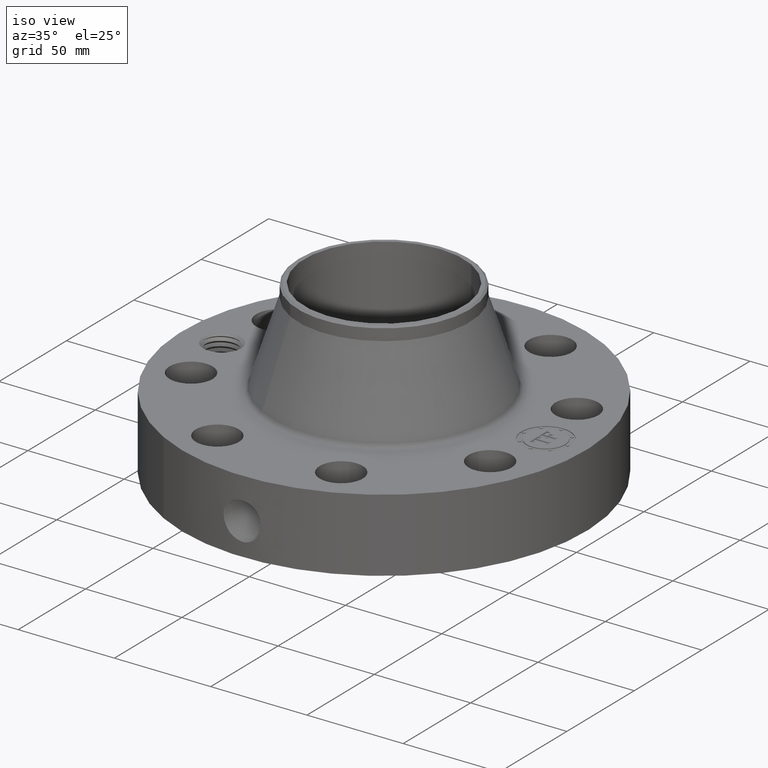
[diagram: clean part render]
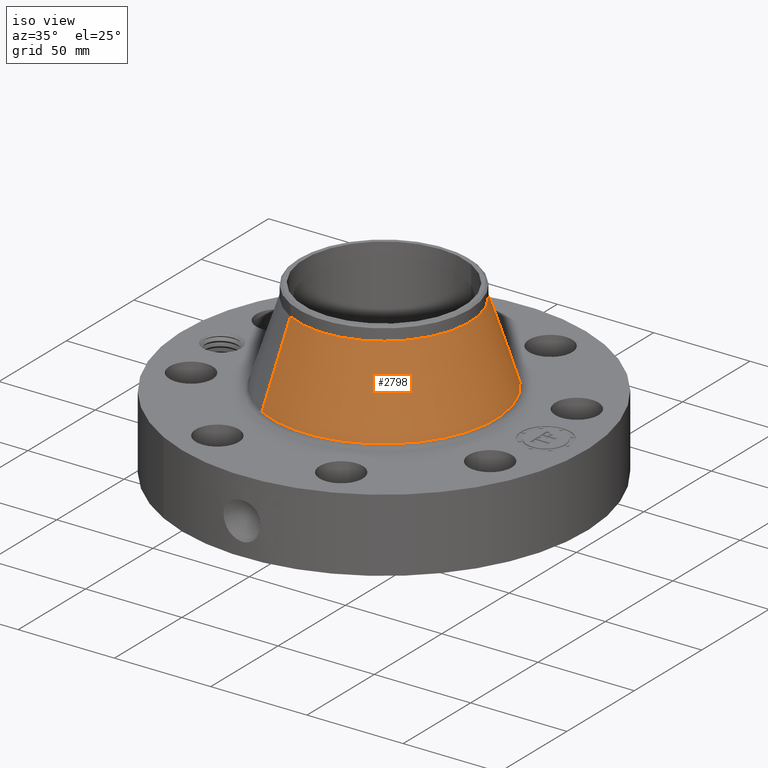
[diagram: same view with one face highlighted and labeled with its STEP entity id]
A machine part, iso view. The second image highlights one B-rep face of the part: STEP entity #2798.
In plain terms, the highlighted conical surface has half-angle 17.916 deg.
Its self-contained STEP definition (entity closure, byte-faithful):
#2148=AXIS2_PLACEMENT_3D('Circle Axis2P3D',#2146,#2147,$) ;
#2771=AXIS2_PLACEMENT_3D('Cone Axis2P3D',#2768,#2769,#2770) ;
#2782=AXIS2_PLACEMENT_3D('Circle Axis2P3D',#2780,#2781,$) ;
#2143=CARTESIAN_POINT('Vertex',(1.09459484092,2.00364241655,1.83308493948)) ;
#2146=CARTESIAN_POINT('Axis2P3D Location',(0.,0.,1.83308493948)) ;
#2150=CARTESIAN_POINT('Vertex',(-1.09459484092,-2.00364241655,1.83308493948)) ;
#2768=CARTESIAN_POINT('Axis2P3D Location',(0.,0.,3.48211973689)) ;
#2773=CARTESIAN_POINT('Line Origine',(0.96679476674,1.76970594993,2.65760233818)) ;
#2777=CARTESIAN_POINT('Vertex',(0.838994692561,1.53576948331,3.48211973689)) ;
#2780=CARTESIAN_POINT('Axis2P3D Location',(0.,0.,3.48211973689)) ;
#2784=CARTESIAN_POINT('Vertex',(-0.838994692561,-1.53576948331,3.48211973689)) ;
#2787=CARTESIAN_POINT('Line Origine',(-0.96679476674,-1.76970594993,2.65760233818)) ;
#2147=DIRECTION('Axis2P3D Direction',(0.,0.,-0.0393700787402)) ;
#2769=DIRECTION('Axis2P3D Direction',(0.,0.,-0.0393700787402)) ;
#2770=DIRECTION('Axis2P3D XDirection',(-0.0188750212049,-0.0345504945626,0.)) ;
#2774=DIRECTION('Vector Direction',(0.00580643791928,0.0106286133181,-0.0374609257444)) ;
#2781=DIRECTION('Axis2P3D Direction',(0.,0.,-0.0393700787402)) ;
#2788=DIRECTION('Vector Direction',(-0.00580643791928,-0.0106286133181,-0.0374609257444)) ;
#2775=VECTOR('Line Direction',#2774,0.0393700787402) ;
#2789=VECTOR('Line Direction',#2788,0.0393700787402) ;
#2793=ORIENTED_EDGE('',*,*,#2152,.F.) ;
#2794=ORIENTED_EDGE('',*,*,#2779,.T.) ;
#2795=ORIENTED_EDGE('',*,*,#2786,.T.) ;
#2796=ORIENTED_EDGE('',*,*,#2791,.F.) ;
#2798=ADVANCED_FACE('PartBody',(#2797),#2772,.T.) ;
#2149=CIRCLE('generated circle',#2148,2.28313836619) ;
#2783=CIRCLE('generated circle',#2782,1.75000000001) ;
#2772=CONICAL_SURFACE('Cone',#2771,1.75000000001,0.312696513331) ;
#2152=EDGE_CURVE('',#2144,#2151,#2149,.T.) ;
#2779=EDGE_CURVE('',#2144,#2778,#2776,.F.) ;
#2786=EDGE_CURVE('',#2778,#2785,#2783,.T.) ;
#2791=EDGE_CURVE('',#2151,#2785,#2790,.F.) ;
#2792=EDGE_LOOP('',(#2793,#2794,#2795,#2796)) ;
#2797=FACE_OUTER_BOUND('',#2792,.T.) ;
#2776=LINE('Line',#2773,#2775) ;
#2790=LINE('Line',#2787,#2789) ;
#2144=VERTEX_POINT('',#2143) ;
#2151=VERTEX_POINT('',#2150) ;
#2778=VERTEX_POINT('',#2777) ;
#2785=VERTEX_POINT('',#2784) ;